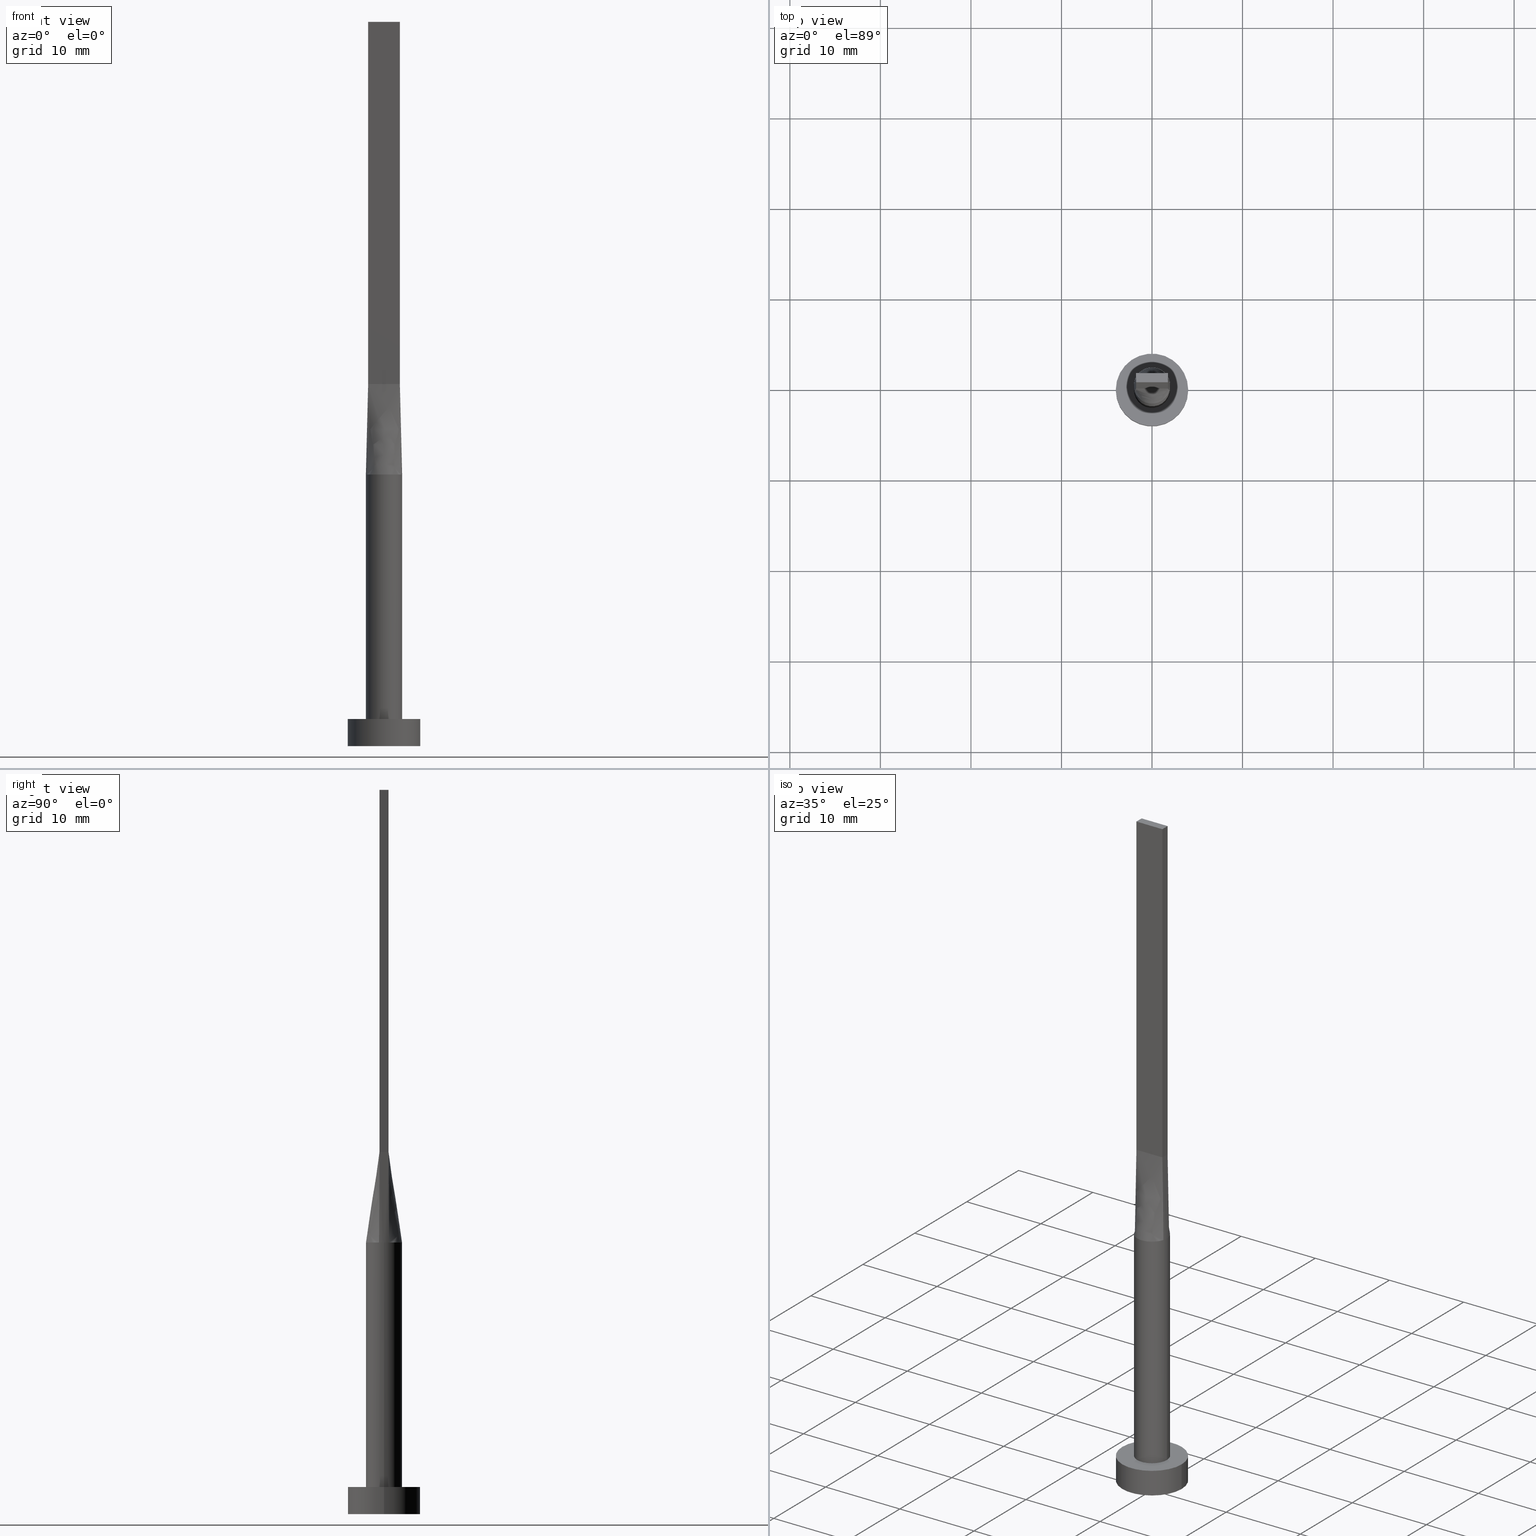
[diagram: canonical four-view strip — front | top / right | iso, engineering-drawing reading convention]
A machine part, canonical four-view strip (front | top / right | iso — engineering-drawing reading convention). The complete STEP part file that produces these views, byte-faithful:
ISO-10303-21;
HEADER;
FILE_DESCRIPTION (( 'STEP AP203' ),
    '1' );
FILE_NAME ('37ff.STEP',
    '2026-02-12T09:02:50',
    ( '' ),
    ( '' ),
    'SwSTEP 2.0',
    'SolidWorks 2019',
    '' );
FILE_SCHEMA (( 'CONFIG_CONTROL_DESIGN' ));
ENDSEC;

DATA;
#1 = CARTESIAN_POINT ( 'NONE',  ( -1.750000000000000000, -0.4999999999999995559, 40.00000000000000000 ) ) ;
#2 = FACE_OUTER_BOUND ( 'NONE', #377, .T. ) ;
#3 = CARTESIAN_POINT ( 'NONE',  ( 1.616149014776643522, 1.193458220519943103, 30.00000000000000000 ) ) ;
#4 = CARTESIAN_POINT ( 'NONE',  ( -1.812374357931688884, 0.8669367617086288780, 30.00000000000001066 ) ) ;
#5 = ADVANCED_FACE ( 'NONE', ( #258 ), #397, .F. ) ;
#6 = CARTESIAN_POINT ( 'NONE',  ( -1.999999999999999556, 0.1867399261870127114, 30.00000000000000355 ) ) ;
#7 = CARTESIAN_POINT ( 'NONE',  ( 1.155438169178558461, 1.647245198242353714, 29.99999999999999645 ) ) ;
#8 = ORIENTED_EDGE ( 'NONE', *, *, #163, .F. ) ;
#9 = CARTESIAN_POINT ( 'NONE',  ( -1.749999999999999778, 0.5000000000000002220, 40.00000000000000000 ) ) ;
#10 = CARTESIAN_POINT ( 'NONE',  ( -1.616149014776643744, -1.193458220519941326, 29.99999999999999645 ) ) ;
#11 = AXIS2_PLACEMENT_3D ( 'NONE', #540, #271, #178 ) ;
#12 = CARTESIAN_POINT ( 'NONE',  ( 1.604166666666666519, -0.4999999999999997780, 39.99999999999999289 ) ) ;
#13 = EDGE_CURVE ( 'NONE', #57, #26, #252, .T. ) ;
#14 = PERSON_AND_ORGANIZATION ( #372, #359 ) ;
#15 = EDGE_LOOP ( 'NONE', ( #462, #200, #91, #498 ) ) ;
#16 = APPLICATION_CONTEXT ( 'configuration controlled 3d designs of mechanical parts and assemblies' ) ;
#17 = CIRCLE ( 'NONE', #454, 4.000000000000000000 ) ;
#18 = ORIENTED_EDGE ( 'NONE', *, *, #13, .T. ) ;
#19 = EDGE_CURVE ( 'NONE', #165, #439, #571, .T. ) ;
#20 = CARTESIAN_POINT ( 'NONE',  ( -1.616149014776643966, 1.193458220519943103, 30.00000000000000711 ) ) ;
#21 = ORIENTED_EDGE ( 'NONE', *, *, #260, .F. ) ;
#22 = CARTESIAN_POINT ( 'NONE',  ( 1.486037034853319616, -1.356520562679219166, 30.00000000000001066 ) ) ;
#23 = EDGE_LOOP ( 'NONE', ( #100, #154 ) ) ;
#24 = CARTESIAN_POINT ( 'NONE',  ( 0.2514338042514523419, -2.000000000000000444, 30.00000000000000000 ) ) ;
#25 = DIRECTION ( 'NONE',  ( 1.000000000000000000, 0.000000000000000000, -0.000000000000000000 ) ) ;
#26 = VERTEX_POINT ( 'NONE', #297 ) ;
#27 = AXIS2_PLACEMENT_3D ( 'NONE', #395, #166, #479 ) ;
#28 = DIRECTION ( 'NONE',  ( 1.000000000000000000, 0.000000000000000000, 0.000000000000000000 ) ) ;
#29 = EDGE_CURVE ( 'NONE', #452, #57, #349, .T. ) ;
#30 = CARTESIAN_POINT ( 'NONE',  ( 1.749999999999999778, 0.3333333333333335924, 39.99999999999999289 ) ) ;
#31 = CARTESIAN_POINT ( 'NONE',  ( 1.749999999999999778, -0.1666666666666663243, 39.99999999999999289 ) ) ;
#32 = LINE ( 'NONE', #296, #512 ) ;
#33 = ORIENTED_EDGE ( 'NONE', *, *, #76, .T. ) ;
#34 = ADVANCED_FACE ( 'NONE', ( #394 ), #259, .T. ) ;
#35 = CARTESIAN_POINT ( 'NONE',  ( 1.750000000000000000, -0.4999999999999997780, 80.00000000000000000 ) ) ;
#36 = ORIENTED_EDGE ( 'NONE', *, *, #303, .F. ) ;
#37 = CYLINDRICAL_SURFACE ( 'NONE', #27, 4.000000000000000000 ) ;
#38 = DIRECTION ( 'NONE',  ( -2.168404344971009361E-16, -1.000000000000000000, 0.000000000000000000 ) ) ;
#39 = DIRECTION ( 'NONE',  ( -0.000000000000000000, -0.000000000000000000, -1.000000000000000000 ) ) ;
#40 = PRODUCT_RELATED_PRODUCT_CATEGORY ( 'detail', '', ( #337 ) ) ;
#41 = AXIS2_PLACEMENT_3D ( 'NONE', #300, #291, #386 ) ;
#42 = VECTOR ( 'NONE', #38, 1000.000000000000000 ) ;
#43 = B_SPLINE_SURFACE_WITH_KNOTS ( 'NONE', 3, 1, ( 
 ( #487, #82 ),
 ( #174, #87 ),
 ( #226, #398 ),
 ( #3, #263 ),
 ( #356, #355 ),
 ( #7, #312 ),
 ( #267, #446 ),
 ( #536, #399 ),
 ( #448, #44 ),
 ( #223, #402 ),
 ( #180, #416 ),
 ( #320, #411 ),
 ( #97, #527 ),
 ( #129, #304 ),
 ( #443, #572 ),
 ( #4, #483 ),
 ( #78, #440 ),
 ( #161, #343 ) ),
 .UNSPECIFIED., .F., .F., .F.,
 ( 4, 2, 2, 2, 2, 2, 2, 2, 4 ),
 ( 2, 2 ),
 ( 0.000000000000000000, 0.1249999999999999722, 0.2500000000000000000, 0.3750000000000000000, 0.5000000000000001110, 0.6250000000000001110, 0.7500000000000000000, 0.8750000000000000000, 1.000000000000000000 ),
 ( 0.000000000000000000, 1.000000000000000000 ),
 .UNSPECIFIED. ) ;
#44 = CARTESIAN_POINT ( 'NONE',  ( 0.1458333333333326209, 0.5000000000000002220, 40.00000000000000000 ) ) ;
#45 = PERSON_AND_ORGANIZATION ( #372, #359 ) ;
#46 = FACE_OUTER_BOUND ( 'NONE', #364, .T. ) ;
#47 = DATE_AND_TIME ( #544, #573 ) ;
#48 = COORDINATED_UNIVERSAL_TIME_OFFSET ( 1, 0, .AHEAD. ) ;
#49 = DATE_AND_TIME ( #451, #237 ) ;
#50 = ORIENTED_EDGE ( 'NONE', *, *, #278, .T. ) ;
#51 = AXIS2_PLACEMENT_3D ( 'NONE', #70, #302, #442 ) ;
#52 = CC_DESIGN_PERSON_AND_ORGANIZATION_ASSIGNMENT ( #90, #181, ( #505 ) ) ;
#53 = LINE ( 'NONE', #93, #407 ) ;
#54 = LOCAL_TIME ( 10, 2, 50.00000000000000000, #363 ) ;
#55 = ORIENTED_EDGE ( 'NONE', *, *, #295, .T. ) ;
#56 = ADVANCED_BREP_SHAPE_REPRESENTATION ( '37ff', ( #137, #294 ), #96 ) ;
#57 = VERTEX_POINT ( 'NONE', #482 ) ;
#58 = APPROVAL_PERSON_ORGANIZATION ( #45, #92, #139 ) ;
#59 = CARTESIAN_POINT ( 'NONE',  ( 1.879022738048942154, 0.7035303061092218480, 30.00000000000000355 ) ) ;
#60 = ORIENTED_EDGE ( 'NONE', *, *, #266, .F. ) ;
#61 = CARTESIAN_POINT ( 'NONE',  ( 0.1458333333333314275, -0.4999999999999995559, 39.99999999999999289 ) ) ;
#62 = LINE ( 'NONE', #243, #306 ) ;
#63 = VERTEX_POINT ( 'NONE', #121 ) ;
#64 = CARTESIAN_POINT ( 'NONE',  ( 1.020833333333331927, -0.4999999999999995559, 39.99999999999999289 ) ) ;
#65 = CARTESIAN_POINT ( 'NONE',  ( 0.000000000000000000, 0.000000000000000000, 30.00000000000000000 ) ) ;
#66 = ORIENTED_EDGE ( 'NONE', *, *, #120, .F. ) ;
#67 = CARTESIAN_POINT ( 'NONE',  ( 0.9545234919502404436, -1.774214358793530177, 30.00000000000001066 ) ) ;
#68 = CC_DESIGN_PERSON_AND_ORGANIZATION_ASSIGNMENT ( #380, #288, ( #337 ) ) ;
#69 = CIRCLE ( 'NONE', #484, 4.000000000000000000 ) ;
#70 = CARTESIAN_POINT ( 'NONE',  ( 0.000000000000000000, 0.000000000000000000, 0.000000000000000000 ) ) ;
#71 = CARTESIAN_POINT ( 'NONE',  ( -1.836523947640823051, 0.5247211278973779036, 35.00000000000000000 ) ) ;
#72 = FACE_OUTER_BOUND ( 'NONE', #414, .T. ) ;
#73 = EDGE_LOOP ( 'NONE', ( #530, #409 ) ) ;
#74 = DIRECTION ( 'NONE',  ( 2.168404344971008868E-16, -1.000000000000000000, 0.000000000000000000 ) ) ;
#75 = LINE ( 'NONE', #549, #186 ) ;
#76 = EDGE_CURVE ( 'NONE', #236, #26, #520, .T. ) ;
#77 = CARTESIAN_POINT ( 'NONE',  ( -1.750000000000000000, -0.4999999999999995559, 80.00000000000000000 ) ) ;
#78 = CARTESIAN_POINT ( 'NONE',  ( -1.879022738048941710, 0.7035303061092221810, 30.00000000000000000 ) ) ;
#79 = PRODUCT_DEFINITION_SHAPE ( 'NONE', 'NONE',  #505 ) ;
#80 = CARTESIAN_POINT ( 'NONE',  ( -1.923179810488875541, 0.5494804890868837388, 30.00000000000000000 ) ) ;
#81 = CARTESIAN_POINT ( 'NONE',  ( -1.749999999999999778, 0.5000000000000002220, 80.00000000000000000 ) ) ;
#82 = CARTESIAN_POINT ( 'NONE',  ( 1.749999999999998890, 0.5000000000000002220, 40.00000000000000000 ) ) ;
#83 = CARTESIAN_POINT ( 'NONE',  ( -1.923047895281646102, 0.5494422557947564734, 30.00000000000000000 ) ) ;
#84 = EDGE_CURVE ( 'NONE', #26, #101, #351, .T. ) ;
#85 = CC_DESIGN_APPROVAL ( #362, ( #195 ) ) ;
#86 = CARTESIAN_POINT ( 'NONE',  ( -1.973362360690451345, -0.3733416268639377367, 30.00000000000000355 ) ) ;
#87 = CARTESIAN_POINT ( 'NONE',  ( 1.604166666666665630, 0.5000000000000002220, 39.99999999999999289 ) ) ;
#88 = PERSON_AND_ORGANIZATION_ROLE ( 'creator' ) ;
#89 = ORIENTED_EDGE ( 'NONE', *, *, #518, .F. ) ;
#90 = PERSON_AND_ORGANIZATION ( #372, #359 ) ;
#91 = ORIENTED_EDGE ( 'NONE', *, *, #493, .T. ) ;
#92 = APPROVAL ( #184, 'NEUR�EN�' ) ;
#93 = CARTESIAN_POINT ( 'NONE',  ( 1.836523947640823051, 0.5247211278973783477, 35.00000000000000000 ) ) ;
#94 = ORIENTED_EDGE ( 'NONE', *, *, #339, .F. ) ;
#95 = CARTESIAN_POINT ( 'NONE',  ( -1.812374357931689994, -0.8669367617086277678, 30.00000000000000355 ) ) ;
#96 =( GEOMETRIC_REPRESENTATION_CONTEXT ( 3 ) GLOBAL_UNCERTAINTY_ASSIGNED_CONTEXT ( ( #328 ) ) GLOBAL_UNIT_ASSIGNED_CONTEXT ( ( #581, #434, #340 ) ) REPRESENTATION_CONTEXT ( 'NONE', 'WORKASPACE' ) );
#97 = CARTESIAN_POINT ( 'NONE',  ( -1.155438169178558017, 1.647245198242353936, 30.00000000000000711 ) ) ;
#98 = ORIENTED_EDGE ( 'NONE', *, *, #457, .T. ) ;
#99 = CARTESIAN_POINT ( 'NONE',  ( 0.9545234919502409987, 1.774214358793529955, 30.00000000000000355 ) ) ;
#100 = ORIENTED_EDGE ( 'NONE', *, *, #136, .F. ) ;
#101 = VERTEX_POINT ( 'NONE', #486 ) ;
#102 = APPLICATION_PROTOCOL_DEFINITION ( 'international standard', 'config_control_design', 1994, #16 ) ;
#103 = VECTOR ( 'NONE', #39, 1000.000000000000000 ) ;
#104 = DIRECTION ( 'NONE',  ( -0.000000000000000000, -0.000000000000000000, -1.000000000000000000 ) ) ;
#105 = ORIENTED_EDGE ( 'NONE', *, *, #278, .F. ) ;
#106 = DIRECTION ( 'NONE',  ( 0.000000000000000000, 0.000000000000000000, 1.000000000000000000 ) ) ;
#107 = VERTEX_POINT ( 'NONE', #262 ) ;
#108 = B_SPLINE_CURVE_WITH_KNOTS ( 'NONE', 3,
 ( #552, #59, #458, #326, #374, #145, #99, #235, #415, #196, #381, #559, #238, #418, #20, #199, #152, #556 ),
 .UNSPECIFIED., .F., .F.,
 ( 4, 2, 2, 2, 2, 2, 2, 2, 4 ),
 ( 0.000000000000000000, 0.1249999999999999722, 0.2500000000000000000, 0.3750000000000000000, 0.5000000000000001110, 0.6250000000000001110, 0.7500000000000000000, 0.8750000000000000000, 1.000000000000000000 ),
 .UNSPECIFIED. ) ;
#109 = CARTESIAN_POINT ( 'NONE',  ( -0.5022746254375808350, -1.951069421695587724, 29.99999999999999289 ) ) ;
#110 = ADVANCED_FACE ( 'NONE', ( #2 ), #336, .T. ) ;
#111 = CARTESIAN_POINT ( 'NONE',  ( 1.999999999999999556, 0.1867399261870121008, 30.00000000000000000 ) ) ;
#112 = PLANE ( 'NONE',  #389 ) ;
#113 = DIRECTION ( 'NONE',  ( 1.000000000000000000, 0.000000000000000000, 0.000000000000000000 ) ) ;
#114 = LINE ( 'NONE', #256, #150 ) ;
#115 = VECTOR ( 'NONE', #318, 1000.000000000000000 ) ;
#116 = CARTESIAN_POINT ( 'NONE',  ( 1.749999999999999778, -0.3333333333333330373, 39.99999999999999289 ) ) ;
#117 = DESIGN_CONTEXT ( 'detailed design', #488, 'design' ) ;
#118 = DIRECTION ( 'NONE',  ( 0.000000000000000000, -0.000000000000000000, -1.000000000000000000 ) ) ;
#119 = DIRECTION ( 'NONE',  ( -0.000000000000000000, -0.000000000000000000, -1.000000000000000000 ) ) ;
#120 = EDGE_CURVE ( 'NONE', #439, #107, #542, .T. ) ;
#121 = CARTESIAN_POINT ( 'NONE',  ( 2.000000000000000000, 2.759698982225367658E-17, 30.00000000000000000 ) ) ;
#122 = FACE_OUTER_BOUND ( 'NONE', #392, .T. ) ;
#123 = DIRECTION ( 'NONE',  ( 1.000000000000000000, 0.000000000000000000, 0.000000000000000000 ) ) ;
#124 = CARTESIAN_POINT ( 'NONE',  ( 1.973362360690451567, 0.3733416268639386804, 30.00000000000000355 ) ) ;
#125 = CARTESIAN_POINT ( 'NONE',  ( 4.000000000000000000, 4.898587196589412829E-16, 3.000000000000000000 ) ) ;
#126 = FACE_BOUND ( 'NONE', #23, .T. ) ;
#127 = EDGE_LOOP ( 'NONE', ( #55, #215, #424, #244 ) ) ;
#128 = VECTOR ( 'NONE', #191, 1000.000000000000000 ) ;
#129 = CARTESIAN_POINT ( 'NONE',  ( -1.486037034853319616, 1.356520562679218056, 30.00000000000000355 ) ) ;
#130 = EDGE_CURVE ( 'NONE', #63, #470, #75, .T. ) ;
#131 = CARTESIAN_POINT ( 'NONE',  ( -1.999999999999999556, -0.1867399261870113791, 30.00000000000000000 ) ) ;
#132 = CARTESIAN_POINT ( 'NONE',  ( 1.750000000000000000, -0.4999999999999997780, 80.00000000000000000 ) ) ;
#133 = APPROVAL_ROLE ( '' ) ;
#134 = AXIS2_PLACEMENT_3D ( 'NONE', #292, #474, #406 ) ;
#135 = CYLINDRICAL_SURFACE ( 'NONE', #353, 2.000000000000000000 ) ;
#136 = EDGE_CURVE ( 'NONE', #419, #470, #533, .T. ) ;
#137 = MANIFOLD_SOLID_BREP ( 'P�idat vysunut�m5', #426 ) ;
#138 = LINE ( 'NONE', #71, #473 ) ;
#139 = APPROVAL_ROLE ( '' ) ;
#140 = CARTESIAN_POINT ( 'NONE',  ( -0.2514338042514540073, -1.999999999999999112, 29.99999999999999645 ) ) ;
#141 = CARTESIAN_POINT ( 'NONE',  ( 0.000000000000000000, 0.000000000000000000, 3.000000000000000000 ) ) ;
#142 = AXIS2_PLACEMENT_3D ( 'NONE', #496, #396, #350 ) ;
#143 = VECTOR ( 'NONE', #436, 1000.000000000000000 ) ;
#144 = ORIENTED_EDGE ( 'NONE', *, *, #450, .T. ) ;
#145 = CARTESIAN_POINT ( 'NONE',  ( 1.155438169178558461, 1.647245198242353714, 29.99999999999999645 ) ) ;
#146 = ORIENTED_EDGE ( 'NONE', *, *, #76, .F. ) ;
#147 = VERTEX_POINT ( 'NONE', #309 ) ;
#148 = CARTESIAN_POINT ( 'NONE',  ( 1.923047895281646325, -0.5494422557947558072, 30.00000000000000000 ) ) ;
#149 = DIRECTION ( 'NONE',  ( 0.000000000000000000, 0.000000000000000000, 1.000000000000000000 ) ) ;
#150 = VECTOR ( 'NONE', #249, 1000.000000000000000 ) ;
#151 = AXIS2_PLACEMENT_3D ( 'NONE', #519, #385, #391 ) ;
#152 = CARTESIAN_POINT ( 'NONE',  ( -1.879022738048941710, 0.7035303061092221810, 30.00000000000000000 ) ) ;
#153 = ADVANCED_FACE ( 'NONE', ( #444 ), #171, .T. ) ;
#154 = ORIENTED_EDGE ( 'NONE', *, *, #433, .F. ) ;
#155 = CARTESIAN_POINT ( 'NONE',  ( 1.166666666666665408, -0.4999999999999995559, 39.99999999999999289 ) ) ;
#156 = DIRECTION ( 'NONE',  ( -0.000000000000000000, -0.000000000000000000, -1.000000000000000000 ) ) ;
#157 = ORIENTED_EDGE ( 'NONE', *, *, #260, .T. ) ;
#158 = CARTESIAN_POINT ( 'NONE',  ( 1.923186205402444449, -0.5494823831763672173, 30.00000000000000000 ) ) ;
#159 = DIRECTION ( 'NONE',  ( -1.000000000000000000, 0.000000000000000000, 0.000000000000000000 ) ) ;
#160 = VERTEX_POINT ( 'NONE', #401 ) ;
#161 = CARTESIAN_POINT ( 'NONE',  ( -1.923047895281646325, 0.5494422557947555852, 30.00000000000000000 ) ) ;
#162 = SHAPE_DEFINITION_REPRESENTATION ( #79, #56 ) ;
#163 = EDGE_CURVE ( 'NONE', #147, #57, #261, .T. ) ;
#164 = VECTOR ( 'NONE', #173, 1000.000000000000227 ) ;
#165 = VERTEX_POINT ( 'NONE', #125 ) ;
#166 = DIRECTION ( 'NONE',  ( -0.000000000000000000, -0.000000000000000000, -1.000000000000000000 ) ) ;
#167 = LINE ( 'NONE', #216, #42 ) ;
#168 = CARTESIAN_POINT ( 'NONE',  ( 1.923047895281646102, -0.5494422557947566954, 30.00000000000000000 ) ) ;
#169 = CARTESIAN_POINT ( 'NONE',  ( -1.750000000000000000, -0.4999999999999995559, 40.00000000000000000 ) ) ;
#170 = DIRECTION ( 'NONE',  ( 0.000000000000000000, 0.000000000000000000, 1.000000000000000000 ) ) ;
#171 = B_SPLINE_SURFACE_WITH_KNOTS ( 'NONE', 3, 1, ( 
 ( #83, #9 ),
 ( #177, #441 ),
 ( #6, #537 ),
 ( #131, #311 ),
 ( #86, #490 ),
 ( #485, #169 ) ),
 .UNSPECIFIED., .F., .F., .F.,
 ( 4, 2, 4 ),
 ( 2, 2 ),
 ( 0.000000000000000000, 0.5000000000000000000, 1.000000000000000000 ),
 ( 0.000000000000000000, 1.000000000000000000 ),
 .UNSPECIFIED. ) ;
#172 = CARTESIAN_POINT ( 'NONE',  ( 1.923047895281646325, 0.5494422557947563623, 30.00000000000000000 ) ) ;
#173 = DIRECTION ( 'NONE',  ( -0.01730198768854150290, 0.004943425053868997360, 0.9998380887777591486 ) ) ;
#174 = CARTESIAN_POINT ( 'NONE',  ( 1.879022738048942154, 0.7035303061092218480, 30.00000000000000355 ) ) ;
#175 = VECTOR ( 'NONE', #264, 1000.000000000000000 ) ;
#176 = ADVANCED_FACE ( 'NONE', ( #225 ), #135, .T. ) ;
#177 = CARTESIAN_POINT ( 'NONE',  ( -1.973362360690451567, 0.3733416268639390134, 30.00000000000000000 ) ) ;
#178 = DIRECTION ( 'NONE',  ( 1.000000000000000000, 0.000000000000000000, 0.000000000000000000 ) ) ;
#179 = DIRECTION ( 'NONE',  ( -0.000000000000000000, -0.000000000000000000, -1.000000000000000000 ) ) ;
#180 = CARTESIAN_POINT ( 'NONE',  ( -0.5022746254375797248, 1.951069421695588169, 29.99999999999999645 ) ) ;
#181 = PERSON_AND_ORGANIZATION_ROLE ( 'creator' ) ;
#182 = EDGE_CURVE ( 'NONE', #330, #147, #357, .T. ) ;
#183 = FACE_OUTER_BOUND ( 'NONE', #192, .T. ) ;
#184 = APPROVAL_STATUS ( 'not_yet_approved' ) ;
#185 = VERTEX_POINT ( 'NONE', #132 ) ;
#186 = VECTOR ( 'NONE', #366, 1000.000000000000000 ) ;
#187 = CARTESIAN_POINT ( 'NONE',  ( 1.458333333333332815, -0.4999999999999996669, 39.99999999999999289 ) ) ;
#188 = CALENDAR_DATE ( 2026, 12, 2 ) ;
#189 = ORIENTED_EDGE ( 'NONE', *, *, #163, .T. ) ;
#190 = LINE ( 'NONE', #471, #115 ) ;
#191 = DIRECTION ( 'NONE',  ( 1.000000000000000000, -6.195440985631454085E-17, 0.000000000000000000 ) ) ;
#192 = EDGE_LOOP ( 'NONE', ( #18, #146, #403, #421 ) ) ;
#193 = ADVANCED_FACE ( 'NONE', ( #183 ), #358, .F. ) ;
#194 = AXIS2_PLACEMENT_3D ( 'NONE', #562, #384, #290 ) ;
#195 = PRODUCT_DEFINITION_FORMATION_WITH_SPECIFIED_SOURCE ( 'LIBOVOLN�', '', #337, .NOT_KNOWN. ) ;
#196 = CARTESIAN_POINT ( 'NONE',  ( -0.2514338042514528415, 1.999999999999999556, 30.00000000000001066 ) ) ;
#197 = ORIENTED_EDGE ( 'NONE', *, *, #413, .T. ) ;
#198 = APPROVAL_STATUS ( 'not_yet_approved' ) ;
#199 = CARTESIAN_POINT ( 'NONE',  ( -1.812374357931688884, 0.8669367617086288780, 30.00000000000001066 ) ) ;
#200 = ORIENTED_EDGE ( 'NONE', *, *, #371, .T. ) ;
#201 = CARTESIAN_POINT ( 'NONE',  ( -0.2916666666666685725, -0.4999999999999995559, 39.99999999999999289 ) ) ;
#202 = CC_DESIGN_PERSON_AND_ORGANIZATION_ASSIGNMENT ( #315, #88, ( #195 ) ) ;
#203 = CARTESIAN_POINT ( 'NONE',  ( -1.750000000000000000, -0.4999999999999995559, 80.00000000000000000 ) ) ;
#204 = ORIENTED_EDGE ( 'NONE', *, *, #120, .T. ) ;
#205 = CARTESIAN_POINT ( 'NONE',  ( -1.750000000000000000, -0.4999999999999995559, 80.00000000000000000 ) ) ;
#206 = CIRCLE ( 'NONE', #151, 2.000000000000000000 ) ;
#207 = EDGE_LOOP ( 'NONE', ( #89, #66 ) ) ;
#208 = CARTESIAN_POINT ( 'NONE',  ( -1.166666666666667851, -0.4999999999999995559, 39.99999999999999289 ) ) ;
#209 = CARTESIAN_POINT ( 'NONE',  ( 0.000000000000000000, 0.000000000000000000, 80.00000000000000000 ) ) ;
#210 = DIRECTION ( 'NONE',  ( -0.01730198768854152372, -0.004943425053868953992, -0.9998380887777591486 ) ) ;
#211 = LINE ( 'NONE', #253, #257 ) ;
#212 = ORIENTED_EDGE ( 'NONE', *, *, #518, .T. ) ;
#213 = PLANE ( 'NONE',  #523 ) ;
#214 = APPROVAL_PERSON_ORGANIZATION ( #430, #532, #285 ) ;
#215 = ORIENTED_EDGE ( 'NONE', *, *, #569, .T. ) ;
#216 = CARTESIAN_POINT ( 'NONE',  ( -1.749999999999999778, 0.5000000000000002220, 80.00000000000000000 ) ) ;
#217 = DIRECTION ( 'NONE',  ( -2.168404344971009361E-16, -1.000000000000000000, 0.000000000000000000 ) ) ;
#218 = DIRECTION ( 'NONE',  ( 0.000000000000000000, -1.000000000000000000, 0.000000000000000000 ) ) ;
#219 = CARTESIAN_POINT ( 'NONE',  ( -1.749999999999999778, 0.5000000000000002220, 40.00000000000000000 ) ) ;
#220 = CC_DESIGN_DATE_AND_TIME_ASSIGNMENT ( #497, #449, ( #427 ) ) ;
#221 = VERTEX_POINT ( 'NONE', #80 ) ;
#222 = CIRCLE ( 'NONE', #248, 2.000000000000000000 ) ;
#223 = CARTESIAN_POINT ( 'NONE',  ( -0.2514338042514528415, 1.999999999999999556, 30.00000000000001066 ) ) ;
#224 = ADVANCED_FACE ( 'NONE', ( #228 ), #268, .T. ) ;
#225 = FACE_OUTER_BOUND ( 'NONE', #478, .T. ) ;
#226 = CARTESIAN_POINT ( 'NONE',  ( 1.812374357931689328, 0.8669367617086293221, 30.00000000000000355 ) ) ;
#227 = ORIENTED_EDGE ( 'NONE', *, *, #13, .F. ) ;
#228 = FACE_OUTER_BOUND ( 'NONE', #127, .T. ) ;
#229 = CARTESIAN_POINT ( 'NONE',  ( 0.000000000000000000, 0.000000000000000000, 0.000000000000000000 ) ) ;
#230 = DATE_TIME_ROLE ( 'creation_date' ) ;
#231 = ORIENTED_EDGE ( 'NONE', *, *, #19, .T. ) ;
#232 = DIRECTION ( 'NONE',  ( -0.01730198768854152372, -0.004943425053869007768, 0.9998380887777591486 ) ) ;
#233 = EDGE_CURVE ( 'NONE', #165, #383, #69, .T. ) ;
#234 = ORIENTED_EDGE ( 'NONE', *, *, #433, .T. ) ;
#235 = CARTESIAN_POINT ( 'NONE',  ( 0.5022746254375803909, 1.951069421695587947, 29.99999999999999645 ) ) ;
#236 = VERTEX_POINT ( 'NONE', #205 ) ;
#237 = LOCAL_TIME ( 10, 2, 50.00000000000000000, #272 ) ;
#238 = CARTESIAN_POINT ( 'NONE',  ( -1.155438169178558017, 1.647245198242353936, 30.00000000000000711 ) ) ;
#239 = ORIENTED_EDGE ( 'NONE', *, *, #468, .F. ) ;
#240 = CARTESIAN_POINT ( 'NONE',  ( -0.9545234919502417759, -1.774214358793529067, 30.00000000000000355 ) ) ;
#241 = ADVANCED_FACE ( 'NONE', ( #361 ), #112, .F. ) ;
#242 = COORDINATED_UNIVERSAL_TIME_OFFSET ( 1, 0, .AHEAD. ) ;
#243 = CARTESIAN_POINT ( 'NONE',  ( 1.750000000000000000, -0.4999999999999997780, 80.00000000000000000 ) ) ;
#244 = ORIENTED_EDGE ( 'NONE', *, *, #84, .T. ) ;
#245 = CARTESIAN_POINT ( 'NONE',  ( 1.750000000000000000, -0.4999999999999997780, 40.00000000000000000 ) ) ;
#246 = ORIENTED_EDGE ( 'NONE', *, *, #29, .F. ) ;
#247 = FACE_OUTER_BOUND ( 'NONE', #317, .T. ) ;
#248 = AXIS2_PLACEMENT_3D ( 'NONE', #65, #329, #323 ) ;
#249 = DIRECTION ( 'NONE',  ( -2.168404344971008868E-16, 1.000000000000000000, 0.000000000000000000 ) ) ;
#250 = CARTESIAN_POINT ( 'NONE',  ( 1.999999999999999556, -0.1867399261870124894, 30.00000000000000355 ) ) ;
#251 = DIRECTION ( 'NONE',  ( 0.000000000000000000, 0.000000000000000000, 1.000000000000000000 ) ) ;
#252 = LINE ( 'NONE', #432, #550 ) ;
#253 = CARTESIAN_POINT ( 'NONE',  ( 1.749999999999999778, 0.5000000000000002220, 80.00000000000000000 ) ) ;
#254 = CARTESIAN_POINT ( 'NONE',  ( 4.000000000000000000, 4.898587196589412829E-16, 3.000000000000000000 ) ) ;
#255 = FACE_OUTER_BOUND ( 'NONE', #553, .T. ) ;
#256 = CARTESIAN_POINT ( 'NONE',  ( 1.750000000000000000, -0.4999999999999997780, 80.00000000000000000 ) ) ;
#257 = VECTOR ( 'NONE', #159, 1000.000000000000000 ) ;
#258 = FACE_OUTER_BOUND ( 'NONE', #207, .T. ) ;
#259 = B_SPLINE_SURFACE_WITH_KNOTS ( 'NONE', 3, 1, ( 
 ( #168, #342 ),
 ( #526, #116 ),
 ( #250, #31 ),
 ( #111, #429 ),
 ( #124, #30 ),
 ( #172, #307 ) ),
 .UNSPECIFIED., .F., .F., .F.,
 ( 4, 2, 4 ),
 ( 2, 2 ),
 ( 0.000000000000000000, 0.5000000000000000000, 1.000000000000000000 ),
 ( 0.000000000000000000, 1.000000000000000000 ),
 .UNSPECIFIED. ) ;
#260 = EDGE_CURVE ( 'NONE', #221, #57, #138, .T. ) ;
#261 = LINE ( 'NONE', #219, #175 ) ;
#262 = CARTESIAN_POINT ( 'NONE',  ( -4.000000000000000000, 0.000000000000000000, 0.000000000000000000 ) ) ;
#263 = CARTESIAN_POINT ( 'NONE',  ( 1.166666666666665630, 0.5000000000000002220, 39.99999999999999289 ) ) ;
#264 = DIRECTION ( 'NONE',  ( -1.000000000000000000, -0.000000000000000000, -0.000000000000000000 ) ) ;
#265 = AXIS2_PLACEMENT_3D ( 'NONE', #35, #525, #74 ) ;
#266 = EDGE_CURVE ( 'NONE', #160, #101, #368, .T. ) ;
#267 = CARTESIAN_POINT ( 'NONE',  ( 0.9545234919502409987, 1.774214358793529955, 30.00000000000000355 ) ) ;
#268 = B_SPLINE_SURFACE_WITH_KNOTS ( 'NONE', 3, 1, ( 
 ( #576, #1 ),
 ( #548, #558 ),
 ( #95, #467 ),
 ( #10, #208 ),
 ( #546, #335 ),
 ( #513, #464 ),
 ( #240, #365 ),
 ( #109, #201 ),
 ( #140, #422 ),
 ( #24, #61 ),
 ( #331, #453 ),
 ( #67, #283 ),
 ( #322, #502 ),
 ( #22, #64 ),
 ( #420, #155 ),
 ( #410, #187 ),
 ( #376, #12 ),
 ( #148, #245 ) ),
 .UNSPECIFIED., .F., .F., .F.,
 ( 4, 2, 2, 2, 2, 2, 2, 2, 4 ),
 ( 2, 2 ),
 ( 0.000000000000000000, 0.1249999999999999722, 0.2500000000000000000, 0.3750000000000000000, 0.5000000000000001110, 0.6250000000000001110, 0.7500000000000000000, 0.8750000000000000000, 1.000000000000000000 ),
 ( 0.000000000000000000, 1.000000000000000000 ),
 .UNSPECIFIED. ) ;
#269 = PERSON_AND_ORGANIZATION_ROLE ( 'classification_officer' ) ;
#270 = APPROVAL_DATE_TIME ( #47, #362 ) ;
#271 = DIRECTION ( 'NONE',  ( 0.000000000000000000, 0.000000000000000000, 1.000000000000000000 ) ) ;
#272 = COORDINATED_UNIVERSAL_TIME_OFFSET ( 1, 0, .AHEAD. ) ;
#273 = ORIENTED_EDGE ( 'NONE', *, *, #136, .T. ) ;
#274 = CARTESIAN_POINT ( 'NONE',  ( -1.750000000000000000, -0.4999999999999995559, 80.00000000000000000 ) ) ;
#275 = CALENDAR_DATE ( 2026, 12, 2 ) ;
#276 = AXIS2_PLACEMENT_3D ( 'NONE', #141, #528, #313 ) ;
#277 = VECTOR ( 'NONE', #104, 1000.000000000000000 ) ;
#278 = EDGE_CURVE ( 'NONE', #511, #147, #190, .T. ) ;
#279 = ORIENTED_EDGE ( 'NONE', *, *, #19, .F. ) ;
#280 = ORIENTED_EDGE ( 'NONE', *, *, #348, .T. ) ;
#281 = ADVANCED_FACE ( 'NONE', ( #247 ), #425, .T. ) ;
#282 = ORIENTED_EDGE ( 'NONE', *, *, #303, .T. ) ;
#283 = CARTESIAN_POINT ( 'NONE',  ( 0.5833333333333317050, -0.4999999999999995559, 39.99999999999999289 ) ) ;
#284 = CC_DESIGN_SECURITY_CLASSIFICATION ( #427, ( #195 ) ) ;
#285 = APPROVAL_ROLE ( '' ) ;
#286 = EDGE_LOOP ( 'NONE', ( #524, #456, #375, #227, #21 ) ) ;
#287 = DIRECTION ( 'NONE',  ( 6.195440985631454085E-17, 1.000000000000000000, -0.000000000000000000 ) ) ;
#288 = PERSON_AND_ORGANIZATION_ROLE ( 'design_owner' ) ;
#289 = VERTEX_POINT ( 'NONE', #158 ) ;
#290 = DIRECTION ( 'NONE',  ( 1.000000000000000000, 0.000000000000000000, 0.000000000000000000 ) ) ;
#291 = DIRECTION ( 'NONE',  ( -0.000000000000000000, -0.000000000000000000, -1.000000000000000000 ) ) ;
#292 = CARTESIAN_POINT ( 'NONE',  ( 0.000000000000000000, 0.000000000000000000, 30.00000000000000000 ) ) ;
#293 = VECTOR ( 'NONE', #539, 1000.000000000000000 ) ;
#294 = AXIS2_PLACEMENT_3D ( 'NONE', #566, #149, #113 ) ;
#295 = EDGE_CURVE ( 'NONE', #101, #289, #461, .T. ) ;
#296 = CARTESIAN_POINT ( 'NONE',  ( -4.000000000000000000, 0.000000000000000000, 3.000000000000000000 ) ) ;
#297 = CARTESIAN_POINT ( 'NONE',  ( -1.750000000000000000, -0.4999999999999995559, 40.00000000000000000 ) ) ;
#298 = CARTESIAN_POINT ( 'NONE',  ( 1.836523947640823051, -0.5247211278973777926, 35.00000000000000000 ) ) ;
#299 = CARTESIAN_POINT ( 'NONE',  ( -2.000000000000000000, 0.000000000000000000, 3.000000000000000000 ) ) ;
#300 = CARTESIAN_POINT ( 'NONE',  ( 0.000000000000000000, 0.000000000000000000, 30.00000000000000000 ) ) ;
#301 = CARTESIAN_POINT ( 'NONE',  ( 1.749999999999999778, 0.5000000000000002220, 80.00000000000000000 ) ) ;
#302 = DIRECTION ( 'NONE',  ( 0.000000000000000000, 0.000000000000000000, 1.000000000000000000 ) ) ;
#303 = EDGE_CURVE ( 'NONE', #495, #147, #53, .T. ) ;
#304 = CARTESIAN_POINT ( 'NONE',  ( -1.020833333333333481, 0.5000000000000002220, 39.99999999999999289 ) ) ;
#305 = DIRECTION ( 'NONE',  ( 0.000000000000000000, 0.000000000000000000, 1.000000000000000000 ) ) ;
#306 = VECTOR ( 'NONE', #156, 1000.000000000000000 ) ;
#307 = CARTESIAN_POINT ( 'NONE',  ( 1.749999999999999778, 0.5000000000000002220, 40.00000000000000000 ) ) ;
#308 = LINE ( 'NONE', #298, #164 ) ;
#309 = CARTESIAN_POINT ( 'NONE',  ( 1.749999999999999778, 0.5000000000000002220, 40.00000000000000000 ) ) ;
#310 = CARTESIAN_POINT ( 'NONE',  ( 1.750000000000000000, -0.4999999999999997780, 40.00000000000000000 ) ) ;
#311 = CARTESIAN_POINT ( 'NONE',  ( -1.749999999999999778, -0.1666666666666665186, 39.99999999999999289 ) ) ;
#312 = CARTESIAN_POINT ( 'NONE',  ( 0.7291666666666657415, 0.5000000000000002220, 39.99999999999999289 ) ) ;
#313 = DIRECTION ( 'NONE',  ( 1.000000000000000000, 0.000000000000000000, 0.000000000000000000 ) ) ;
#314 = LOCAL_TIME ( 10, 2, 50.00000000000000000, #48 ) ;
#315 = PERSON_AND_ORGANIZATION ( #372, #359 ) ;
#316 = APPROVAL_DATE_TIME ( #500, #532 ) ;
#317 = EDGE_LOOP ( 'NONE', ( #279, #466, #334, #212 ) ) ;
#318 = DIRECTION ( 'NONE',  ( -2.168404344971008868E-16, 1.000000000000000000, -0.000000000000000000 ) ) ;
#319 = APPROVAL_DATE_TIME ( #547, #92 ) ;
#320 = CARTESIAN_POINT ( 'NONE',  ( -0.9545234919502401105, 1.774214358793530177, 30.00000000000000355 ) ) ;
#321 = ADVANCED_FACE ( 'NONE', ( #72 ), #341, .F. ) ;
#322 = CARTESIAN_POINT ( 'NONE',  ( 1.155438169178558017, -1.647245198242354158, 30.00000000000001066 ) ) ;
#323 = DIRECTION ( 'NONE',  ( 1.000000000000000000, 0.000000000000000000, 0.000000000000000000 ) ) ;
#324 = ORIENTED_EDGE ( 'NONE', *, *, #130, .F. ) ;
#325 = EDGE_CURVE ( 'NONE', #185, #330, #114, .T. ) ;
#326 = CARTESIAN_POINT ( 'NONE',  ( 1.616149014776643522, 1.193458220519943103, 30.00000000000000000 ) ) ;
#327 = ORIENTED_EDGE ( 'NONE', *, *, #489, .T. ) ;
#328 = UNCERTAINTY_MEASURE_WITH_UNIT (LENGTH_MEASURE( 1.000000000000000082E-05 ), #581, 'distance_accuracy_value', 'NONE');
#329 = DIRECTION ( 'NONE',  ( 0.000000000000000000, 0.000000000000000000, 1.000000000000000000 ) ) ;
#330 = VERTEX_POINT ( 'NONE', #567 ) ;
#331 = CARTESIAN_POINT ( 'NONE',  ( 0.5022746254375793917, -1.951069421695588169, 29.99999999999999645 ) ) ;
#332 = CIRCLE ( 'NONE', #379, 2.000000000000000000 ) ;
#333 = LINE ( 'NONE', #203, #128 ) ;
#334 = ORIENTED_EDGE ( 'NONE', *, *, #390, .T. ) ;
#335 = CARTESIAN_POINT ( 'NONE',  ( -1.020833333333334592, -0.4999999999999995559, 39.99999999999999289 ) ) ;
#336 = CYLINDRICAL_SURFACE ( 'NONE', #41, 2.000000000000000000 ) ;
#337 = PRODUCT ( '37ff', '37ff', '', ( #475 ) ) ;
#338 = DIRECTION ( 'NONE',  ( -1.000000000000000000, 0.000000000000000000, 0.000000000000000000 ) ) ;
#339 = EDGE_CURVE ( 'NONE', #330, #452, #211, .T. ) ;
#340 =( NAMED_UNIT ( * ) SI_UNIT ( $, .STERADIAN. ) SOLID_ANGLE_UNIT ( ) );
#341 = PLANE ( 'NONE',  #265 ) ;
#342 = CARTESIAN_POINT ( 'NONE',  ( 1.750000000000000000, -0.4999999999999997780, 40.00000000000000000 ) ) ;
#343 = CARTESIAN_POINT ( 'NONE',  ( -1.749999999999999778, 0.5000000000000002220, 40.00000000000000000 ) ) ;
#344 = CC_DESIGN_APPROVAL ( #532, ( #505 ) ) ;
#345 = DIRECTION ( 'NONE',  ( 1.000000000000000000, -6.195440985631454085E-17, 0.000000000000000000 ) ) ;
#346 = ORIENTED_EDGE ( 'NONE', *, *, #130, .T. ) ;
#347 = CARTESIAN_POINT ( 'NONE',  ( 0.000000000000000000, 0.000000000000000000, 3.000000000000000000 ) ) ;
#348 = EDGE_CURVE ( 'NONE', #26, #511, #428, .T. ) ;
#349 = LINE ( 'NONE', #81, #143 ) ;
#350 = DIRECTION ( 'NONE',  ( 2.168404344971009361E-16, 1.000000000000000000, 0.000000000000000000 ) ) ;
#351 = LINE ( 'NONE', #388, #491 ) ;
#352 = CARTESIAN_POINT ( 'NONE',  ( 1.749999999999999778, 0.5000000000000002220, 80.00000000000000000 ) ) ;
#353 = AXIS2_PLACEMENT_3D ( 'NONE', #535, #179, #404 ) ;
#354 = AXIS2_PLACEMENT_3D ( 'NONE', #301, #218, #118 ) ;
#355 = CARTESIAN_POINT ( 'NONE',  ( 1.020833333333332371, 0.5000000000000002220, 39.99999999999999289 ) ) ;
#356 = CARTESIAN_POINT ( 'NONE',  ( 1.486037034853319616, 1.356520562679217834, 29.99999999999999289 ) ) ;
#357 = LINE ( 'NONE', #352, #293 ) ;
#358 = PLANE ( 'NONE',  #142 ) ;
#359 = ORGANIZATION ( 'NEUR�EN�', 'NEUR�EN�', '' ) ;
#360 = PERSON_AND_ORGANIZATION ( #372, #359 ) ;
#361 = FACE_OUTER_BOUND ( 'NONE', #507, .T. ) ;
#362 = APPROVAL ( #408, 'NEUR�EN�' ) ;
#363 = COORDINATED_UNIVERSAL_TIME_OFFSET ( 1, 0, .AHEAD. ) ;
#364 = EDGE_LOOP ( 'NONE', ( #98, #157, #8, #36 ) ) ;
#365 = CARTESIAN_POINT ( 'NONE',  ( -0.5833333333333350357, -0.4999999999999995559, 39.99999999999999289 ) ) ;
#366 = DIRECTION ( 'NONE',  ( -0.000000000000000000, -0.000000000000000000, -1.000000000000000000 ) ) ;
#367 = CARTESIAN_POINT ( 'NONE',  ( 1.923154993136894975, 0.5494733089275741778, 30.00000000000000000 ) ) ;
#368 = CIRCLE ( 'NONE', #194, 2.000000000000000000 ) ;
#369 = ORIENTED_EDGE ( 'NONE', *, *, #182, .F. ) ;
#370 = CIRCLE ( 'NONE', #11, 4.000000000000000000 ) ;
#371 = EDGE_CURVE ( 'NONE', #452, #236, #167, .T. ) ;
#372 = PERSON ( 'NEUR�EN�', 'NEUR�EN�', 'NEUR�EN�', ('NEUR�EN�'), ('NEUR�EN�'), ('NEUR�EN�') ) ;
#373 = ORIENTED_EDGE ( 'NONE', *, *, #325, .F. ) ;
#374 = CARTESIAN_POINT ( 'NONE',  ( 1.486037034853319616, 1.356520562679217834, 29.99999999999999289 ) ) ;
#375 = ORIENTED_EDGE ( 'NONE', *, *, #84, .F. ) ;
#376 = CARTESIAN_POINT ( 'NONE',  ( 1.879022738048941710, -0.7035303061092221810, 30.00000000000000000 ) ) ;
#377 = EDGE_LOOP ( 'NONE', ( #324, #564, #504, #60, #506, #273 ) ) ;
#378 = DIRECTION ( 'NONE',  ( -1.000000000000000000, 6.195440985631454085E-17, 0.000000000000000000 ) ) ;
#379 = AXIS2_PLACEMENT_3D ( 'NONE', #577, #170, #123 ) ;
#380 = PERSON_AND_ORGANIZATION ( #372, #359 ) ;
#381 = CARTESIAN_POINT ( 'NONE',  ( -0.5022746254375797248, 1.951069421695588169, 29.99999999999999645 ) ) ;
#382 = EDGE_CURVE ( 'NONE', #221, #160, #206, .T. ) ;
#383 = VERTEX_POINT ( 'NONE', #435 ) ;
#384 = DIRECTION ( 'NONE',  ( 0.000000000000000000, 0.000000000000000000, 1.000000000000000000 ) ) ;
#385 = DIRECTION ( 'NONE',  ( 0.000000000000000000, 0.000000000000000000, 1.000000000000000000 ) ) ;
#386 = DIRECTION ( 'NONE',  ( -1.000000000000000000, 0.000000000000000000, 0.000000000000000000 ) ) ;
#387 = DIRECTION ( 'NONE',  ( 0.000000000000000000, 0.000000000000000000, 1.000000000000000000 ) ) ;
#388 = CARTESIAN_POINT ( 'NONE',  ( -1.836523947640823273, -0.5247211278973773485, 35.00000000000000000 ) ) ;
#389 = AXIS2_PLACEMENT_3D ( 'NONE', #274, #287, #378 ) ;
#390 = EDGE_CURVE ( 'NONE', #383, #107, #32, .T. ) ;
#391 = DIRECTION ( 'NONE',  ( 1.000000000000000000, 0.000000000000000000, 0.000000000000000000 ) ) ;
#392 = EDGE_LOOP ( 'NONE', ( #189, #246, #94, #459 ) ) ;
#393 = CARTESIAN_POINT ( 'NONE',  ( 0.000000000000000000, 0.000000000000000000, 30.00000000000000000 ) ) ;
#394 = FACE_OUTER_BOUND ( 'NONE', #545, .T. ) ;
#395 = CARTESIAN_POINT ( 'NONE',  ( 0.000000000000000000, 0.000000000000000000, 3.000000000000000000 ) ) ;
#396 = DIRECTION ( 'NONE',  ( 1.000000000000000000, -2.168404344971009361E-16, 0.000000000000000000 ) ) ;
#397 = PLANE ( 'NONE',  #51 ) ;
#398 = CARTESIAN_POINT ( 'NONE',  ( 1.458333333333332371, 0.5000000000000002220, 39.99999999999999289 ) ) ;
#399 = CARTESIAN_POINT ( 'NONE',  ( 0.2916666666666658525, 0.5000000000000002220, 39.99999999999999289 ) ) ;
#400 = CC_DESIGN_DATE_AND_TIME_ASSIGNMENT ( #49, #230, ( #505 ) ) ;
#401 = CARTESIAN_POINT ( 'NONE',  ( -2.000000000000000000, 8.710755549421510381E-17, 30.00000000000000000 ) ) ;
#402 = CARTESIAN_POINT ( 'NONE',  ( -0.1458333333333340365, 0.5000000000000002220, 39.99999999999999289 ) ) ;
#403 = ORIENTED_EDGE ( 'NONE', *, *, #371, .F. ) ;
#404 = DIRECTION ( 'NONE',  ( -1.000000000000000000, 0.000000000000000000, 0.000000000000000000 ) ) ;
#405 = ADVANCED_FACE ( 'NONE', ( #570 ), #476, .T. ) ;
#406 = DIRECTION ( 'NONE',  ( 1.000000000000000000, 0.000000000000000000, 0.000000000000000000 ) ) ;
#407 = VECTOR ( 'NONE', #232, 1000.000000000000227 ) ;
#408 = APPROVAL_STATUS ( 'not_yet_approved' ) ;
#409 = ORIENTED_EDGE ( 'NONE', *, *, #233, .T. ) ;
#410 = CARTESIAN_POINT ( 'NONE',  ( 1.812374357931689106, -0.8669367617086289890, 30.00000000000001066 ) ) ;
#411 = CARTESIAN_POINT ( 'NONE',  ( -0.5833333333333339255, 0.5000000000000002220, 39.99999999999999289 ) ) ;
#412 = SECURITY_CLASSIFICATION_LEVEL ( 'unclassified' ) ;
#413 = EDGE_CURVE ( 'NONE', #289, #63, #534, .T. ) ;
#414 = EDGE_LOOP ( 'NONE', ( #50, #369, #373, #327 ) ) ;
#415 = CARTESIAN_POINT ( 'NONE',  ( 0.2514338042514535632, 1.999999999999999556, 30.00000000000000355 ) ) ;
#416 = CARTESIAN_POINT ( 'NONE',  ( -0.2916666666666674623, 0.5000000000000002220, 39.99999999999999289 ) ) ;
#417 = ORIENTED_EDGE ( 'NONE', *, *, #493, .F. ) ;
#418 = CARTESIAN_POINT ( 'NONE',  ( -1.486037034853319616, 1.356520562679218056, 30.00000000000000355 ) ) ;
#419 = VERTEX_POINT ( 'NONE', #299 ) ;
#420 = CARTESIAN_POINT ( 'NONE',  ( 1.616149014776643522, -1.193458220519943547, 30.00000000000000711 ) ) ;
#421 = ORIENTED_EDGE ( 'NONE', *, *, #29, .T. ) ;
#422 = CARTESIAN_POINT ( 'NONE',  ( -0.1458333333333353687, -0.4999999999999995559, 40.00000000000000000 ) ) ;
#423 = CC_DESIGN_PERSON_AND_ORGANIZATION_ASSIGNMENT ( #14, #269, ( #427 ) ) ;
#424 = ORIENTED_EDGE ( 'NONE', *, *, #348, .F. ) ;
#425 = CYLINDRICAL_SURFACE ( 'NONE', #509, 4.000000000000000000 ) ;
#426 = CLOSED_SHELL ( 'NONE', ( #176, #578, #281, #445, #5, #110, #224, #34, #153, #538, #555, #193, #241, #321, #405 ) ) ;
#427 = SECURITY_CLASSIFICATION ( '', '', #412 ) ;
#428 = LINE ( 'NONE', #574, #463 ) ;
#429 = CARTESIAN_POINT ( 'NONE',  ( 1.749999999999999778, 0.1666666666666669905, 39.99999999999999289 ) ) ;
#430 = PERSON_AND_ORGANIZATION ( #372, #359 ) ;
#431 = DIRECTION ( 'NONE',  ( 1.000000000000000000, 0.000000000000000000, -0.000000000000000000 ) ) ;
#432 = CARTESIAN_POINT ( 'NONE',  ( -1.749999999999999778, 0.5000000000000002220, 40.00000000000000000 ) ) ;
#433 = EDGE_CURVE ( 'NONE', #470, #419, #332, .T. ) ;
#434 =( NAMED_UNIT ( * ) PLANE_ANGLE_UNIT ( ) SI_UNIT ( $, .RADIAN. ) );
#435 = CARTESIAN_POINT ( 'NONE',  ( -4.000000000000000000, 0.000000000000000000, 3.000000000000000000 ) ) ;
#436 = DIRECTION ( 'NONE',  ( -0.000000000000000000, -0.000000000000000000, -1.000000000000000000 ) ) ;
#437 = AXIS2_PLACEMENT_3D ( 'NONE', #472, #568, #480 ) ;
#438 = FACE_OUTER_BOUND ( 'NONE', #73, .T. ) ;
#439 = VERTEX_POINT ( 'NONE', #529 ) ;
#440 = CARTESIAN_POINT ( 'NONE',  ( -1.604166666666666519, 0.5000000000000002220, 39.99999999999999289 ) ) ;
#441 = CARTESIAN_POINT ( 'NONE',  ( -1.749999999999999778, 0.3333333333333334259, 39.99999999999999289 ) ) ;
#442 = DIRECTION ( 'NONE',  ( 1.000000000000000000, 0.000000000000000000, -0.000000000000000000 ) ) ;
#443 = CARTESIAN_POINT ( 'NONE',  ( -1.616149014776643966, 1.193458220519943103, 30.00000000000000711 ) ) ;
#444 = FACE_OUTER_BOUND ( 'NONE', #286, .T. ) ;
#445 = ADVANCED_FACE ( 'NONE', ( #126, #438 ), #213, .T. ) ;
#446 = CARTESIAN_POINT ( 'NONE',  ( 0.5833333333333323711, 0.5000000000000002220, 39.99999999999999289 ) ) ;
#447 = LOCAL_TIME ( 10, 2, 50.00000000000000000, #242 ) ;
#448 = CARTESIAN_POINT ( 'NONE',  ( 0.2514338042514535632, 1.999999999999999556, 30.00000000000000355 ) ) ;
#449 = DATE_TIME_ROLE ( 'classification_date' ) ;
#450 = EDGE_CURVE ( 'NONE', #63, #495, #222, .T. ) ;
#451 = CALENDAR_DATE ( 2026, 12, 2 ) ;
#452 = VERTEX_POINT ( 'NONE', #460 ) ;
#453 = CARTESIAN_POINT ( 'NONE',  ( 0.2916666666666649643, -0.4999999999999995559, 39.99999999999999289 ) ) ;
#454 = AXIS2_PLACEMENT_3D ( 'NONE', #229, #580, #531 ) ;
#455 = PERSON_AND_ORGANIZATION_ROLE ( 'design_supplier' ) ;
#456 = ORIENTED_EDGE ( 'NONE', *, *, #266, .T. ) ;
#457 = EDGE_CURVE ( 'NONE', #495, #221, #108, .T. ) ;
#458 = CARTESIAN_POINT ( 'NONE',  ( 1.812374357931689328, 0.8669367617086293221, 30.00000000000000355 ) ) ;
#459 = ORIENTED_EDGE ( 'NONE', *, *, #182, .T. ) ;
#460 = CARTESIAN_POINT ( 'NONE',  ( -1.749999999999999778, 0.5000000000000002220, 80.00000000000000000 ) ) ;
#461 = CIRCLE ( 'NONE', #134, 2.000000000000000000 ) ;
#462 = ORIENTED_EDGE ( 'NONE', *, *, #339, .T. ) ;
#463 = VECTOR ( 'NONE', #345, 1000.000000000000000 ) ;
#464 = CARTESIAN_POINT ( 'NONE',  ( -0.7291666666666681840, -0.4999999999999995559, 39.99999999999999289 ) ) ;
#465 = CARTESIAN_POINT ( 'NONE',  ( 2.000000000000000000, 2.449293598294706414E-16, 3.000000000000000000 ) ) ;
#466 = ORIENTED_EDGE ( 'NONE', *, *, #510, .F. ) ;
#467 = CARTESIAN_POINT ( 'NONE',  ( -1.458333333333333925, -0.4999999999999995559, 39.99999999999999289 ) ) ;
#468 = EDGE_CURVE ( 'NONE', #160, #419, #563, .T. ) ;
#469 = APPLICATION_PROTOCOL_DEFINITION ( 'international standard', 'config_control_design', 1994, #488 ) ;
#470 = VERTEX_POINT ( 'NONE', #465 ) ;
#471 = CARTESIAN_POINT ( 'NONE',  ( 1.749999999999999778, 0.5000000000000002220, 40.00000000000000000 ) ) ;
#472 = CARTESIAN_POINT ( 'NONE',  ( 0.000000000000000000, 0.000000000000000000, 0.000000000000000000 ) ) ;
#473 = VECTOR ( 'NONE', #515, 1000.000000000000227 ) ;
#474 = DIRECTION ( 'NONE',  ( 0.000000000000000000, 0.000000000000000000, 1.000000000000000000 ) ) ;
#475 = MECHANICAL_CONTEXT ( 'NONE', #16, 'mechanical' ) ;
#476 = PLANE ( 'NONE',  #551 ) ;
#477 = CC_DESIGN_PERSON_AND_ORGANIZATION_ASSIGNMENT ( #360, #455, ( #195 ) ) ;
#478 = EDGE_LOOP ( 'NONE', ( #554, #346, #234, #239, #557, #514 ) ) ;
#479 = DIRECTION ( 'NONE',  ( -1.000000000000000000, 0.000000000000000000, 0.000000000000000000 ) ) ;
#480 = DIRECTION ( 'NONE',  ( 1.000000000000000000, 0.000000000000000000, 0.000000000000000000 ) ) ;
#481 = DIRECTION ( 'NONE',  ( 1.000000000000000000, 3.552713678800500929E-15, 0.000000000000000000 ) ) ;
#482 = CARTESIAN_POINT ( 'NONE',  ( -1.749999999999999778, 0.5000000000000002220, 40.00000000000000000 ) ) ;
#483 = CARTESIAN_POINT ( 'NONE',  ( -1.458333333333333259, 0.5000000000000002220, 39.99999999999999289 ) ) ;
#484 = AXIS2_PLACEMENT_3D ( 'NONE', #517, #106, #28 ) ;
#485 = CARTESIAN_POINT ( 'NONE',  ( -1.923047895281646547, -0.5494422557947552521, 30.00000000000000000 ) ) ;
#486 = CARTESIAN_POINT ( 'NONE',  ( -1.923161340940673369, -0.5494751859438878894, 30.00000000000000000 ) ) ;
#487 = CARTESIAN_POINT ( 'NONE',  ( 1.923047895281646325, 0.5494422557947561403, 30.00000000000000000 ) ) ;
#488 = APPLICATION_CONTEXT ( 'configuration controlled 3d designs of mechanical parts and assemblies' ) ;
#489 = EDGE_CURVE ( 'NONE', #185, #511, #62, .T. ) ;
#490 = CARTESIAN_POINT ( 'NONE',  ( -1.749999999999999778, -0.3333333333333330373, 39.99999999999999289 ) ) ;
#491 = VECTOR ( 'NONE', #210, 1000.000000000000227 ) ;
#492 = APPROVAL_PERSON_ORGANIZATION ( #541, #362, #133 ) ;
#493 = EDGE_CURVE ( 'NONE', #236, #185, #333, .T. ) ;
#494 = COORDINATED_UNIVERSAL_TIME_OFFSET ( 1, 0, .AHEAD. ) ;
#495 = VERTEX_POINT ( 'NONE', #367 ) ;
#496 = CARTESIAN_POINT ( 'NONE',  ( -1.749999999999999778, 0.5000000000000002220, 80.00000000000000000 ) ) ;
#497 = DATE_AND_TIME ( #188, #314 ) ;
#498 = ORIENTED_EDGE ( 'NONE', *, *, #325, .T. ) ;
#499 = CARTESIAN_POINT ( 'NONE',  ( 0.000000000000000000, 0.000000000000000000, 3.000000000000000000 ) ) ;
#500 = DATE_AND_TIME ( #503, #447 ) ;
#501 = ORIENTED_EDGE ( 'NONE', *, *, #390, .F. ) ;
#502 = CARTESIAN_POINT ( 'NONE',  ( 0.7291666666666650753, -0.4999999999999995559, 39.99999999999999289 ) ) ;
#503 = CALENDAR_DATE ( 2026, 12, 2 ) ;
#504 = ORIENTED_EDGE ( 'NONE', *, *, #295, .F. ) ;
#505 = PRODUCT_DEFINITION ( 'NEZN�M�', '', #195, #117 ) ;
#506 = ORIENTED_EDGE ( 'NONE', *, *, #468, .T. ) ;
#507 = EDGE_LOOP ( 'NONE', ( #280, #560, #417, #33 ) ) ;
#508 = CARTESIAN_POINT ( 'NONE',  ( -2.000000000000000000, 0.000000000000000000, 30.00000000000000000 ) ) ;
#509 = AXIS2_PLACEMENT_3D ( 'NONE', #499, #565, #338 ) ;
#510 = EDGE_CURVE ( 'NONE', #383, #165, #370, .T. ) ;
#511 = VERTEX_POINT ( 'NONE', #310 ) ;
#512 = VECTOR ( 'NONE', #119, 1000.000000000000000 ) ;
#513 = CARTESIAN_POINT ( 'NONE',  ( -1.155438169178558461, -1.647245198242353714, 30.00000000000000355 ) ) ;
#514 = ORIENTED_EDGE ( 'NONE', *, *, #457, .F. ) ;
#515 = DIRECTION ( 'NONE',  ( 0.01730198768854152372, -0.004943425053868931440, 0.9998380887777591486 ) ) ;
#516 = DIRECTION ( 'NONE',  ( -0.000000000000000000, -0.000000000000000000, -1.000000000000000000 ) ) ;
#517 = CARTESIAN_POINT ( 'NONE',  ( 0.000000000000000000, 0.000000000000000000, 3.000000000000000000 ) ) ;
#518 = EDGE_CURVE ( 'NONE', #107, #439, #17, .T. ) ;
#519 = CARTESIAN_POINT ( 'NONE',  ( 0.000000000000000000, 0.000000000000000000, 30.00000000000000000 ) ) ;
#520 = LINE ( 'NONE', #77, #103 ) ;
#521 = VECTOR ( 'NONE', #516, 1000.000000000000000 ) ;
#522 = PLANE ( 'NONE',  #354 ) ;
#523 = AXIS2_PLACEMENT_3D ( 'NONE', #347, #305, #25 ) ;
#524 = ORIENTED_EDGE ( 'NONE', *, *, #382, .T. ) ;
#525 = DIRECTION ( 'NONE',  ( -1.000000000000000000, -2.168404344971008868E-16, 0.000000000000000000 ) ) ;
#526 = CARTESIAN_POINT ( 'NONE',  ( 1.973362360690451567, -0.3733416268639390689, 30.00000000000000000 ) ) ;
#527 = CARTESIAN_POINT ( 'NONE',  ( -0.7291666666666671848, 0.5000000000000002220, 39.99999999999999289 ) ) ;
#528 = DIRECTION ( 'NONE',  ( 0.000000000000000000, 0.000000000000000000, 1.000000000000000000 ) ) ;
#529 = CARTESIAN_POINT ( 'NONE',  ( 4.000000000000000000, 4.898587196589412829E-16, 0.000000000000000000 ) ) ;
#530 = ORIENTED_EDGE ( 'NONE', *, *, #510, .T. ) ;
#531 = DIRECTION ( 'NONE',  ( 1.000000000000000000, 0.000000000000000000, 0.000000000000000000 ) ) ;
#532 = APPROVAL ( #198, 'NEUR�EN�' ) ;
#533 = CIRCLE ( 'NONE', #276, 2.000000000000000000 ) ;
#534 = CIRCLE ( 'NONE', #543, 2.000000000000000000 ) ;
#535 = CARTESIAN_POINT ( 'NONE',  ( 0.000000000000000000, 0.000000000000000000, 30.00000000000000000 ) ) ;
#536 = CARTESIAN_POINT ( 'NONE',  ( 0.5022746254375803909, 1.951069421695587947, 29.99999999999999645 ) ) ;
#537 = CARTESIAN_POINT ( 'NONE',  ( -1.749999999999999778, 0.1666666666666667129, 39.99999999999999289 ) ) ;
#538 = ADVANCED_FACE ( 'NONE', ( #46 ), #43, .T. ) ;
#539 = DIRECTION ( 'NONE',  ( -0.000000000000000000, -0.000000000000000000, -1.000000000000000000 ) ) ;
#540 = CARTESIAN_POINT ( 'NONE',  ( 0.000000000000000000, 0.000000000000000000, 3.000000000000000000 ) ) ;
#541 = PERSON_AND_ORGANIZATION ( #372, #359 ) ;
#542 = CIRCLE ( 'NONE', #437, 4.000000000000000000 ) ;
#543 = AXIS2_PLACEMENT_3D ( 'NONE', #393, #387, #481 ) ;
#544 = CALENDAR_DATE ( 2026, 12, 2 ) ;
#545 = EDGE_LOOP ( 'NONE', ( #197, #144, #282, #105, #575 ) ) ;
#546 = CARTESIAN_POINT ( 'NONE',  ( -1.486037034853320060, -1.356520562679217390, 29.99999999999999645 ) ) ;
#547 = DATE_AND_TIME ( #275, #54 ) ;
#548 = CARTESIAN_POINT ( 'NONE',  ( -1.879022738048942598, -0.7035303061092208488, 30.00000000000000355 ) ) ;
#549 = CARTESIAN_POINT ( 'NONE',  ( 2.000000000000000000, 2.449293598294706414E-16, 30.00000000000000000 ) ) ;
#550 = VECTOR ( 'NONE', #217, 1000.000000000000000 ) ;
#551 = AXIS2_PLACEMENT_3D ( 'NONE', #209, #251, #431 ) ;
#552 = CARTESIAN_POINT ( 'NONE',  ( 1.923154993136894975, 0.5494733089275741778, 30.00000000000000000 ) ) ;
#553 = EDGE_LOOP ( 'NONE', ( #579, #231, #204, #501 ) ) ;
#554 = ORIENTED_EDGE ( 'NONE', *, *, #450, .F. ) ;
#555 = ADVANCED_FACE ( 'NONE', ( #122 ), #522, .F. ) ;
#556 = CARTESIAN_POINT ( 'NONE',  ( -1.923179810488875541, 0.5494804890868837388, 30.00000000000000000 ) ) ;
#557 = ORIENTED_EDGE ( 'NONE', *, *, #382, .F. ) ;
#558 = CARTESIAN_POINT ( 'NONE',  ( -1.604166666666666963, -0.4999999999999995559, 39.99999999999999289 ) ) ;
#559 = CARTESIAN_POINT ( 'NONE',  ( -0.9545234919502401105, 1.774214358793530177, 30.00000000000000355 ) ) ;
#560 = ORIENTED_EDGE ( 'NONE', *, *, #489, .F. ) ;
#561 = CC_DESIGN_APPROVAL ( #92, ( #427 ) ) ;
#562 = CARTESIAN_POINT ( 'NONE',  ( 0.000000000000000000, 0.000000000000000000, 30.00000000000000000 ) ) ;
#563 = LINE ( 'NONE', #508, #277 ) ;
#564 = ORIENTED_EDGE ( 'NONE', *, *, #413, .F. ) ;
#565 = DIRECTION ( 'NONE',  ( -0.000000000000000000, -0.000000000000000000, -1.000000000000000000 ) ) ;
#566 = CARTESIAN_POINT ( 'NONE',  ( 0.000000000000000000, 0.000000000000000000, 0.000000000000000000 ) ) ;
#567 = CARTESIAN_POINT ( 'NONE',  ( 1.749999999999999778, 0.5000000000000002220, 80.00000000000000000 ) ) ;
#568 = DIRECTION ( 'NONE',  ( 0.000000000000000000, 0.000000000000000000, 1.000000000000000000 ) ) ;
#569 = EDGE_CURVE ( 'NONE', #289, #511, #308, .T. ) ;
#570 = FACE_OUTER_BOUND ( 'NONE', #15, .T. ) ;
#571 = LINE ( 'NONE', #254, #521 ) ;
#572 = CARTESIAN_POINT ( 'NONE',  ( -1.166666666666666519, 0.5000000000000002220, 39.99999999999999289 ) ) ;
#573 = LOCAL_TIME ( 10, 2, 50.00000000000000000, #494 ) ;
#574 = CARTESIAN_POINT ( 'NONE',  ( -1.750000000000000000, -0.4999999999999995559, 40.00000000000000000 ) ) ;
#575 = ORIENTED_EDGE ( 'NONE', *, *, #569, .F. ) ;
#576 = CARTESIAN_POINT ( 'NONE',  ( -1.923047895281646547, -0.5494422557947552521, 30.00000000000000000 ) ) ;
#577 = CARTESIAN_POINT ( 'NONE',  ( 0.000000000000000000, 0.000000000000000000, 3.000000000000000000 ) ) ;
#578 = ADVANCED_FACE ( 'NONE', ( #255 ), #37, .T. ) ;
#579 = ORIENTED_EDGE ( 'NONE', *, *, #233, .F. ) ;
#580 = DIRECTION ( 'NONE',  ( 0.000000000000000000, 0.000000000000000000, 1.000000000000000000 ) ) ;
#581 =( LENGTH_UNIT ( ) NAMED_UNIT ( * ) SI_UNIT ( .MILLI., .METRE. ) );
ENDSEC;
END-ISO-10303-21;
